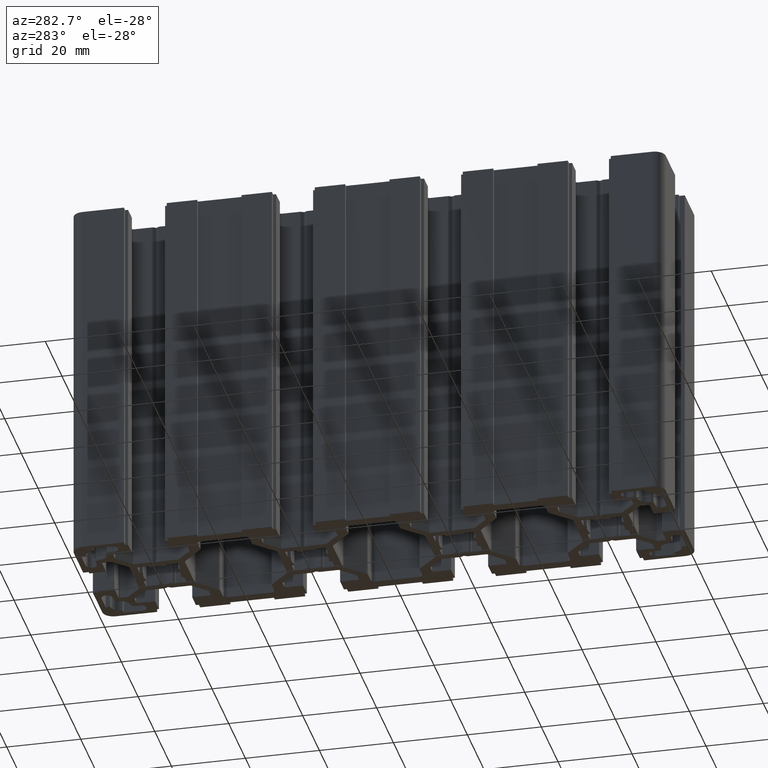
[diagram: clean part render]
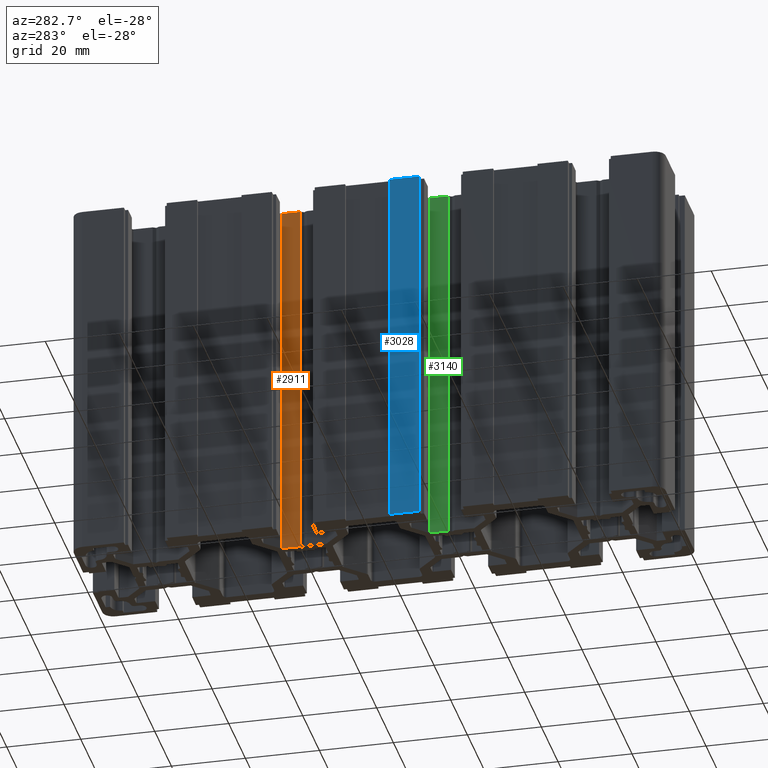
[diagram: same view with three faces highlighted in distinct colors, each labeled with its STEP entity id]
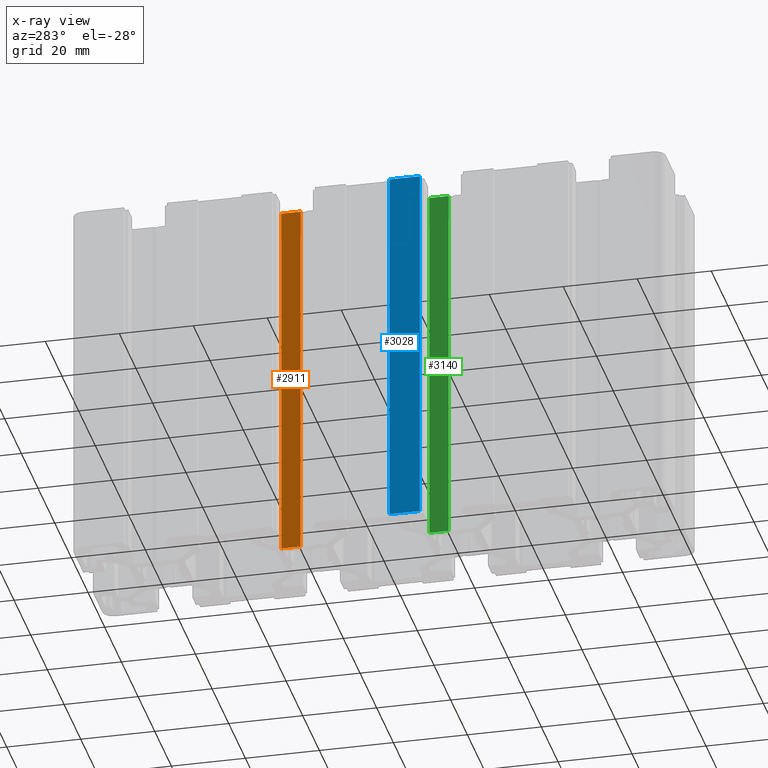
[diagram: x-ray of the same camera — body ghosted, the three highlighted faces saturated]
A machine part, auxiliary view with three faces highlighted in distinct colors.
The next image is the same camera in x-ray (body ghosted, the three faces saturated) — at least one of them is partly hidden behind the body in this view.
Their STEP definitions:

[orange] entity #2911 — the highlighted planar face has unit normal (1, 0, 0).
#381 = VERTEX_POINT ( 'NONE', #6801 ) ;
#383 = EDGE_CURVE ( 'NONE', #381, #384, #6800, .T. ) ;
#384 = VERTEX_POINT ( 'NONE', #6796 ) ;
#2562 = VERTEX_POINT ( 'NONE', #10640 ) ;
#2564 = EDGE_CURVE ( 'NONE', #2565, #2562, #10639, .T. ) ;
#2565 = VERTEX_POINT ( 'NONE', #10635 ) ;
#2911 = ADVANCED_FACE ( 'NONE', ( #11266 ), #11265, .F. ) ;
#2912 = EDGE_LOOP ( 'NONE', ( #2913, #2914, #2972, #2973 ) ) ;
#2913 = ORIENTED_EDGE ( 'NONE', *, *, #2564, .T. ) ;
#2914 = ORIENTED_EDGE ( 'NONE', *, *, #2915, .F. ) ;
#2915 = EDGE_CURVE ( 'NONE', #384, #2562, #11264, .T. ) ;
#2972 = ORIENTED_EDGE ( 'NONE', *, *, #383, .F. ) ;
#2973 = ORIENTED_EDGE ( 'NONE', *, *, #2988, .T. ) ;
#2988 = EDGE_CURVE ( 'NONE', #381, #2565, #11398, .T. ) ;
#6796 = CARTESIAN_POINT ( 'NONE',  ( -7.500000000000000000, 20.86602654819363100, 100.0000000000000000 ) ) ;
#6797 = DIRECTION ( 'NONE',  ( 0.0000000000000000000, -1.000000000000000000, 0.0000000000000000000 ) ) ;
#6798 = VECTOR ( 'NONE', #6797, 1000.000000000000000 ) ;
#6799 = CARTESIAN_POINT ( 'NONE',  ( -7.500000000000000000, 20.86602654819363100, 100.0000000000000000 ) ) ;
#6800 = LINE ( 'NONE', #6799, #6798 ) ;
#6801 = CARTESIAN_POINT ( 'NONE',  ( -7.500000000000000000, 26.08578844070435900, 100.0000000000000000 ) ) ;
#10635 = CARTESIAN_POINT ( 'NONE',  ( -7.500000000000000000, 26.08578844070435900, 0.0000000000000000000 ) ) ;
#10636 = DIRECTION ( 'NONE',  ( 0.0000000000000000000, -1.000000000000000000, 0.0000000000000000000 ) ) ;
#10637 = VECTOR ( 'NONE', #10636, 1000.000000000000000 ) ;
#10638 = CARTESIAN_POINT ( 'NONE',  ( -7.500000000000000000, 20.86602654819363100, 0.0000000000000000000 ) ) ;
#10639 = LINE ( 'NONE', #10638, #10637 ) ;
#10640 = CARTESIAN_POINT ( 'NONE',  ( -7.500000000000000000, 20.86602654819363100, 0.0000000000000000000 ) ) ;
#11257 = DIRECTION ( 'NONE',  ( 0.0000000000000000000, 0.0000000000000000000, -1.000000000000000000 ) ) ;
#11258 = VECTOR ( 'NONE', #11257, 1000.000000000000000 ) ;
#11259 = CARTESIAN_POINT ( 'NONE',  ( -7.500000000000000000, 20.86602654819363100, 100.0000000000000000 ) ) ;
#11260 = DIRECTION ( 'NONE',  ( 0.0000000000000000000, 0.0000000000000000000, -1.000000000000000000 ) ) ;
#11261 = DIRECTION ( 'NONE',  ( 1.000000000000000000, 0.0000000000000000000, 0.0000000000000000000 ) ) ;
#11262 = CARTESIAN_POINT ( 'NONE',  ( -7.500000000000000000, 20.86602654819363100, 100.0000000000000000 ) ) ;
#11263 = AXIS2_PLACEMENT_3D ( 'NONE', #11262, #11261, #11260 ) ;
#11264 = LINE ( 'NONE', #11259, #11258 ) ;
#11265 = PLANE ( 'NONE',  #11263 ) ;
#11266 = FACE_OUTER_BOUND ( 'NONE', #2912, .T. ) ;
#11395 = DIRECTION ( 'NONE',  ( 0.0000000000000000000, 0.0000000000000000000, -1.000000000000000000 ) ) ;
#11396 = VECTOR ( 'NONE', #11395, 1000.000000000000000 ) ;
#11397 = CARTESIAN_POINT ( 'NONE',  ( -7.500000000000000000, 26.08578844070435900, 100.0000000000000000 ) ) ;
#11398 = LINE ( 'NONE', #11397, #11396 ) ;

[blue] entity #3028 — the highlighted planar face has unit normal (1, 0, 0).
#434 = VERTEX_POINT ( 'NONE', #6894 ) ;
#436 = EDGE_CURVE ( 'NONE', #434, #503, #6893, .T. ) ;
#503 = VERTEX_POINT ( 'NONE', #7025 ) ;
#2511 = VERTEX_POINT ( 'NONE', #10535 ) ;
#2513 = EDGE_CURVE ( 'NONE', #2514, #2511, #10534, .T. ) ;
#2514 = VERTEX_POINT ( 'NONE', #10530 ) ;
#3028 = ADVANCED_FACE ( 'NONE', ( #11467 ), #11466, .F. ) ;
#3029 = EDGE_LOOP ( 'NONE', ( #3030, #3031, #3033, #3034 ) ) ;
#3030 = ORIENTED_EDGE ( 'NONE', *, *, #2513, .T. ) ;
#3031 = ORIENTED_EDGE ( 'NONE', *, *, #3032, .F. ) ;
#3032 = EDGE_CURVE ( 'NONE', #503, #2511, #11461, .T. ) ;
#3033 = ORIENTED_EDGE ( 'NONE', *, *, #436, .F. ) ;
#3034 = ORIENTED_EDGE ( 'NONE', *, *, #3049, .T. ) ;
#3049 = EDGE_CURVE ( 'NONE', #434, #2514, #11502, .T. ) ;
#6890 = DIRECTION ( 'NONE',  ( 0.0000000000000000000, -1.000000000000000000, 0.0000000000000000000 ) ) ;
#6891 = VECTOR ( 'NONE', #6890, 1000.000000000000000 ) ;
#6892 = CARTESIAN_POINT ( 'NONE',  ( -20.00000000000000000, -14.19999961853024000, 100.0000000000000000 ) ) ;
#6893 = LINE ( 'NONE', #6892, #6891 ) ;
#6894 = CARTESIAN_POINT ( 'NONE',  ( -20.00000000000000000, -6.000000000000000000, 100.0000000000000000 ) ) ;
#7025 = CARTESIAN_POINT ( 'NONE',  ( -20.00000000000000000, -14.19999961853024000, 100.0000000000000000 ) ) ;
#10530 = CARTESIAN_POINT ( 'NONE',  ( -20.00000000000000000, -6.000000000000000000, 0.0000000000000000000 ) ) ;
#10531 = DIRECTION ( 'NONE',  ( 0.0000000000000000000, -1.000000000000000000, 0.0000000000000000000 ) ) ;
#10532 = VECTOR ( 'NONE', #10531, 1000.000000000000000 ) ;
#10533 = CARTESIAN_POINT ( 'NONE',  ( -20.00000000000000000, -14.19999961853024000, 0.0000000000000000000 ) ) ;
#10534 = LINE ( 'NONE', #10533, #10532 ) ;
#10535 = CARTESIAN_POINT ( 'NONE',  ( -20.00000000000000000, -14.19999961853024000, 0.0000000000000000000 ) ) ;
#11458 = DIRECTION ( 'NONE',  ( 0.0000000000000000000, 0.0000000000000000000, -1.000000000000000000 ) ) ;
#11459 = VECTOR ( 'NONE', #11458, 1000.000000000000000 ) ;
#11460 = CARTESIAN_POINT ( 'NONE',  ( -20.00000000000000000, -14.19999961853024000, 100.0000000000000000 ) ) ;
#11461 = LINE ( 'NONE', #11460, #11459 ) ;
#11462 = DIRECTION ( 'NONE',  ( 0.0000000000000000000, 0.0000000000000000000, -1.000000000000000000 ) ) ;
#11463 = DIRECTION ( 'NONE',  ( 1.000000000000000000, 0.0000000000000000000, 0.0000000000000000000 ) ) ;
#11464 = CARTESIAN_POINT ( 'NONE',  ( -20.00000000000000000, -14.19999961853024000, 100.0000000000000000 ) ) ;
#11465 = AXIS2_PLACEMENT_3D ( 'NONE', #11464, #11463, #11462 ) ;
#11466 = PLANE ( 'NONE',  #11465 ) ;
#11467 = FACE_OUTER_BOUND ( 'NONE', #3029, .T. ) ;
#11499 = DIRECTION ( 'NONE',  ( 0.0000000000000000000, 0.0000000000000000000, -1.000000000000000000 ) ) ;
#11500 = VECTOR ( 'NONE', #11499, 1000.000000000000000 ) ;
#11501 = CARTESIAN_POINT ( 'NONE',  ( -20.00000000000000000, -6.000000000000000000, 100.0000000000000000 ) ) ;
#11502 = LINE ( 'NONE', #11501, #11500 ) ;

[green] entity #3140 — the highlighted planar face has unit normal (1, 0, 0).
#493 = VERTEX_POINT ( 'NONE', #6978 ) ;
#495 = EDGE_CURVE ( 'NONE', #493, #496, #7040, .T. ) ;
#496 = VERTEX_POINT ( 'NONE', #7036 ) ;
#2449 = VERTEX_POINT ( 'NONE', #10452 ) ;
#2451 = EDGE_CURVE ( 'NONE', #2452, #2449, #10451, .T. ) ;
#2452 = VERTEX_POINT ( 'NONE', #10447 ) ;
#3118 = ORIENTED_EDGE ( 'NONE', *, *, #3119, .F. ) ;
#3119 = EDGE_CURVE ( 'NONE', #496, #2449, #11543, .T. ) ;
#3120 = ORIENTED_EDGE ( 'NONE', *, *, #495, .F. ) ;
#3121 = ORIENTED_EDGE ( 'NONE', *, *, #3137, .T. ) ;
#3137 = EDGE_CURVE ( 'NONE', #493, #2452, #11583, .T. ) ;
#3140 = ADVANCED_FACE ( 'NONE', ( #11579 ), #11578, .F. ) ;
#3141 = EDGE_LOOP ( 'NONE', ( #3142, #3118, #3120, #3121 ) ) ;
#3142 = ORIENTED_EDGE ( 'NONE', *, *, #2451, .T. ) ;
#6978 = CARTESIAN_POINT ( 'NONE',  ( -7.499999999999998200, -13.91421346664427000, 100.0000000000000000 ) ) ;
#7036 = CARTESIAN_POINT ( 'NONE',  ( -7.499999999999998200, -19.13397535915499900, 100.0000000000000000 ) ) ;
#7037 = DIRECTION ( 'NONE',  ( 0.0000000000000000000, -1.000000000000000000, 0.0000000000000000000 ) ) ;
#7038 = VECTOR ( 'NONE', #7037, 1000.000000000000000 ) ;
#7039 = CARTESIAN_POINT ( 'NONE',  ( -7.499999999999998200, -19.13397535915499900, 100.0000000000000000 ) ) ;
#7040 = LINE ( 'NONE', #7039, #7038 ) ;
#10447 = CARTESIAN_POINT ( 'NONE',  ( -7.499999999999998200, -13.91421346664427000, 0.0000000000000000000 ) ) ;
#10448 = DIRECTION ( 'NONE',  ( 0.0000000000000000000, -1.000000000000000000, 0.0000000000000000000 ) ) ;
#10449 = VECTOR ( 'NONE', #10448, 1000.000000000000000 ) ;
#10450 = CARTESIAN_POINT ( 'NONE',  ( -7.499999999999998200, -19.13397535915499900, 0.0000000000000000000 ) ) ;
#10451 = LINE ( 'NONE', #10450, #10449 ) ;
#10452 = CARTESIAN_POINT ( 'NONE',  ( -7.499999999999998200, -19.13397535915499900, 0.0000000000000000000 ) ) ;
#11540 = DIRECTION ( 'NONE',  ( 0.0000000000000000000, 0.0000000000000000000, -1.000000000000000000 ) ) ;
#11541 = VECTOR ( 'NONE', #11540, 1000.000000000000000 ) ;
#11542 = CARTESIAN_POINT ( 'NONE',  ( -7.499999999999998200, -19.13397535915499900, 100.0000000000000000 ) ) ;
#11543 = LINE ( 'NONE', #11542, #11541 ) ;
#11573 = DIRECTION ( 'NONE',  ( 0.0000000000000000000, 0.0000000000000000000, -1.000000000000000000 ) ) ;
#11574 = DIRECTION ( 'NONE',  ( 1.000000000000000000, 0.0000000000000000000, 0.0000000000000000000 ) ) ;
#11575 = CARTESIAN_POINT ( 'NONE',  ( -7.499999999999998200, -19.13397535915499900, 100.0000000000000000 ) ) ;
#11576 = AXIS2_PLACEMENT_3D ( 'NONE', #11575, #11574, #11573 ) ;
#11578 = PLANE ( 'NONE',  #11576 ) ;
#11579 = FACE_OUTER_BOUND ( 'NONE', #3141, .T. ) ;
#11580 = DIRECTION ( 'NONE',  ( 0.0000000000000000000, 0.0000000000000000000, -1.000000000000000000 ) ) ;
#11581 = VECTOR ( 'NONE', #11580, 1000.000000000000000 ) ;
#11582 = CARTESIAN_POINT ( 'NONE',  ( -7.499999999999998200, -13.91421346664427000, 100.0000000000000000 ) ) ;
#11583 = LINE ( 'NONE', #11582, #11581 ) ;